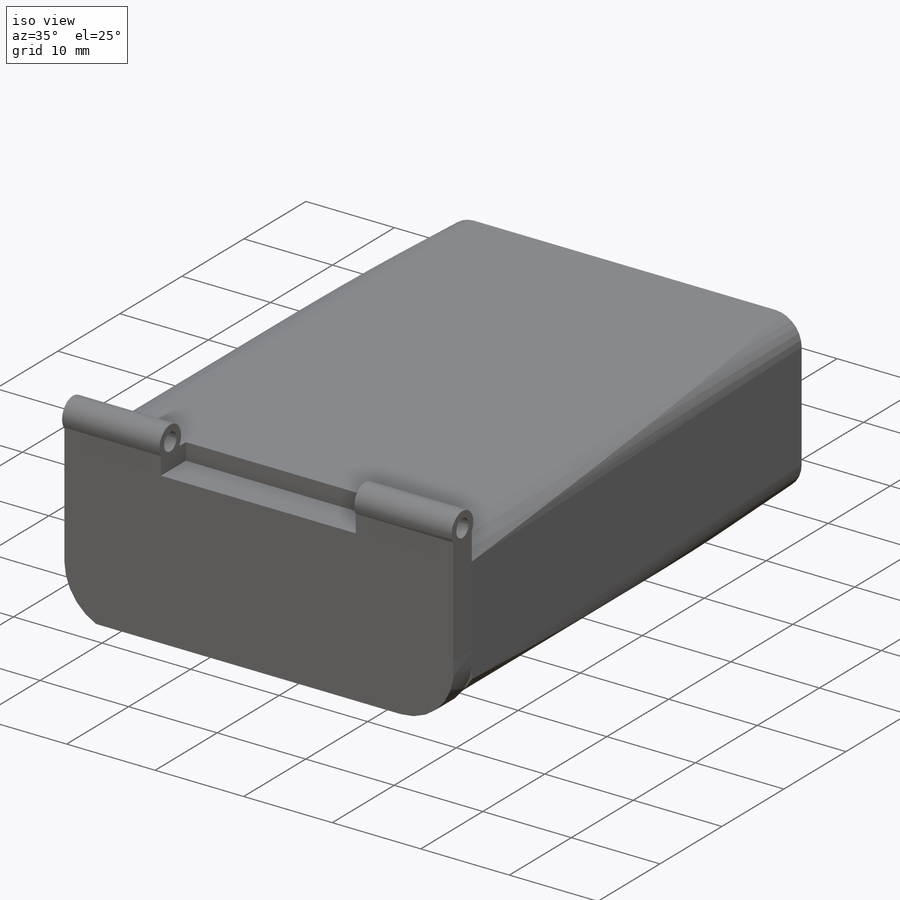
[diagram: iso view]
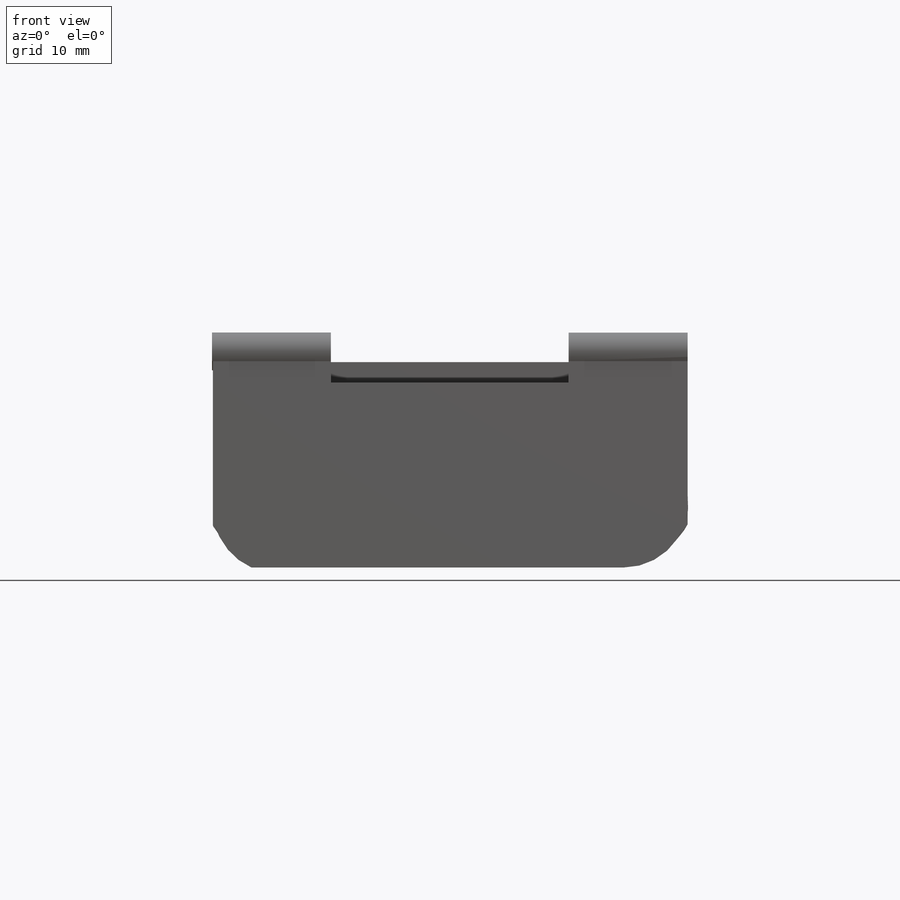
[diagram: front view]
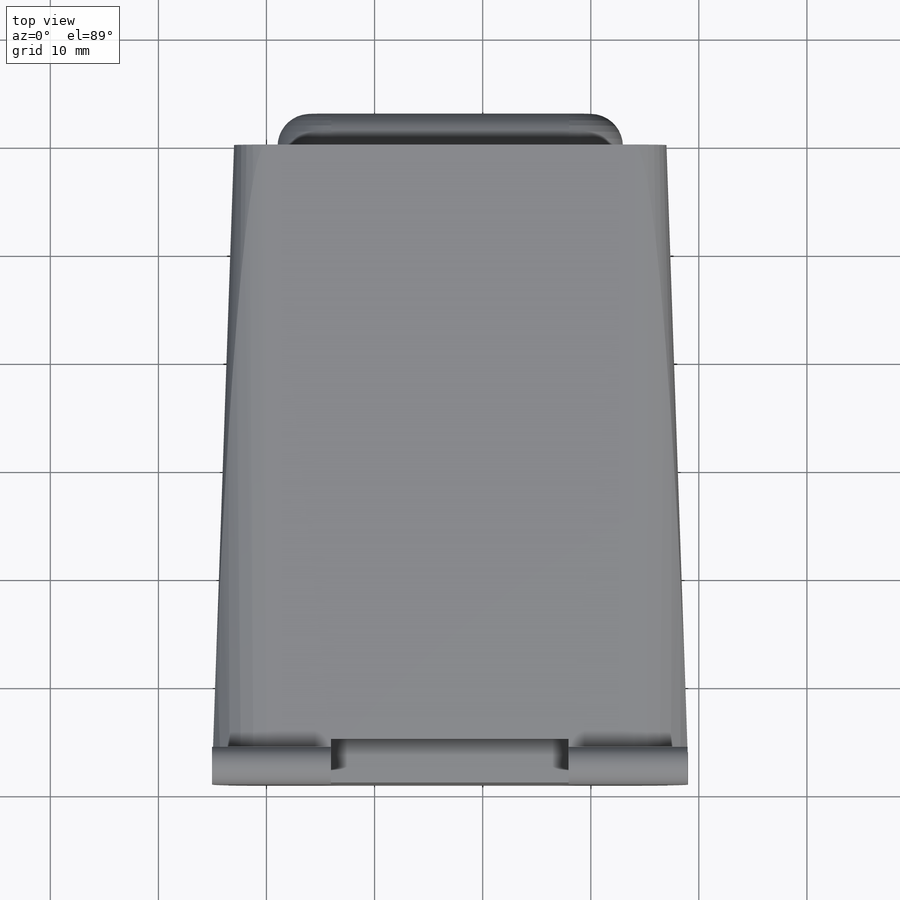
[diagram: top view]
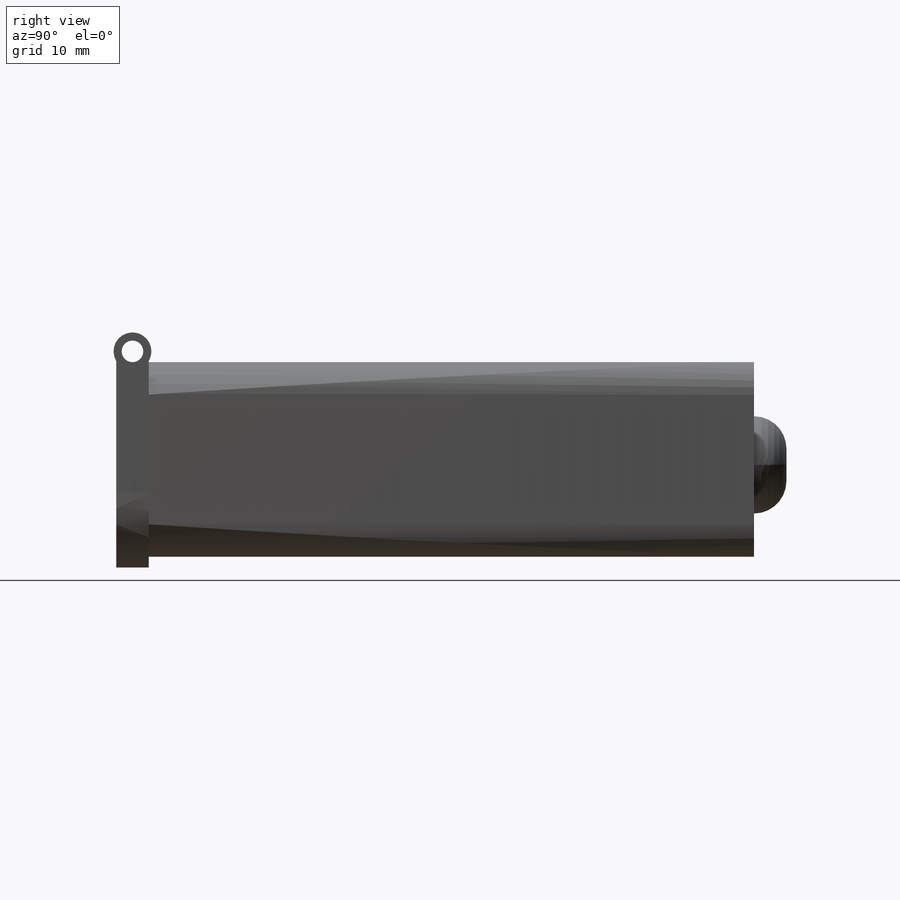
[diagram: right view]
SOLIDWORKS PART (.sldprt)
format: sldprt  version: not decoded by parser v0  size: 307,200 bytes
history: native  units: mm
features: sketch x7, plane x4, extrude x4, cut_extrude x3, fillet x2, material x1 (+9 scaffold rows collapsed)
feature tree (30):
  scaffold x9  (default folders/planes/origin — collapsed)
  material  "Malzeme <belirli değil>"
  plane  "Ön Düzlem"
  plane  "Üst Düzlem"
  plane  "Sağ Düzlem"
  sketch  "Çizim1"  dims[D3=3.0mm D1=18.0mm D2=40.0mm]
  extrude  "Yükseklik-Ekstrüzyon1"  Depth=56mm
  sketch  "Çizim2"
  cut_extrude  "Kes-Ekstrüzyon1"  Depth=58mm
  sketch  "Çizim3"  dims[c1.D5=6.0mm c1.D1=~34.558836mm c2.D1=~0.64484deg c3.D1=~34.558836mm c4.D1=~0.64484deg c5.D1=1.0mm c5.D2=1.0mm c5.D3=1.0mm c5.D4=1.0mm c6.D2=1.0mm]
  extrude  "Yükseklik-Ekstrüzyon2"  Depth=3mm
  sketch  "Çizim4"  dims[D1=3.5mm]
  extrude  "Yükseklik-Ekstrüzyon3"  Depth=44mm
  sketch  "Çizim5"  dims[D1=2.0mm]
  cut_extrude  "Kes-Ekstrüzyon2"  Depth=56mm
  plane  "Düzlem1"  Offset=2mm
  sketch  "Çizim6"  dims[D1=22.0mm D2=2.0mm D3=8.0mm]
  cut_extrude  "Kes-Ekstrüzyon3"  Depth=6mm
  sketch  "Çizim7"  dims[D1=9.0mm D2=32.0mm D3=5.0mm]
  extrude  "Yükseklik-Ekstrüzyon4"  Depth=3mm
  fillet  "Radyus1"  Radius=5mm
  fillet  "Radyus2"  Radius=3mm
decode coverage: 15 of 16 modeling features carry decoded parameters
note: ~ marks probable driven/reference dimensions
note: suppression state not decoded; provenance and decode notes live in map.json
